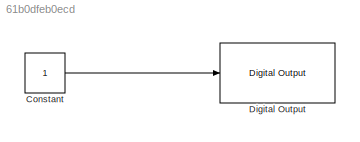
MODEL slx_61b0dfeb0ecd
KIND model
CONFIG AbsTol = auto
CONFIG EnableMultiTasking = off
CONFIG FixedStep = auto
CONFIG MaxStep = auto
CONFIG MinStep = auto
CONFIG RelTol = 1e-3
CONFIG SampleTimeConstraint = Unconstrained
CONFIG SolverName = FixedStepDiscrete
CONFIG StartTime = 0.0
CONFIG StopTime = Inf
BLOCK [Constant] Constant
  SampleTime = 0.5
  VectorParams1D = off
BLOCK [Reference] Digital Output  REF=c2837xDlib/Digital Output
  Ports = [1]
  SourceBlock = c2837xDlib/Digital Output
  SourceProductBaseCode = TIC2000
  SourceType = F2837x GPIO Digital Output
  UserDataPersistent = on
LINE Constant:1 -> Digital Output:1
